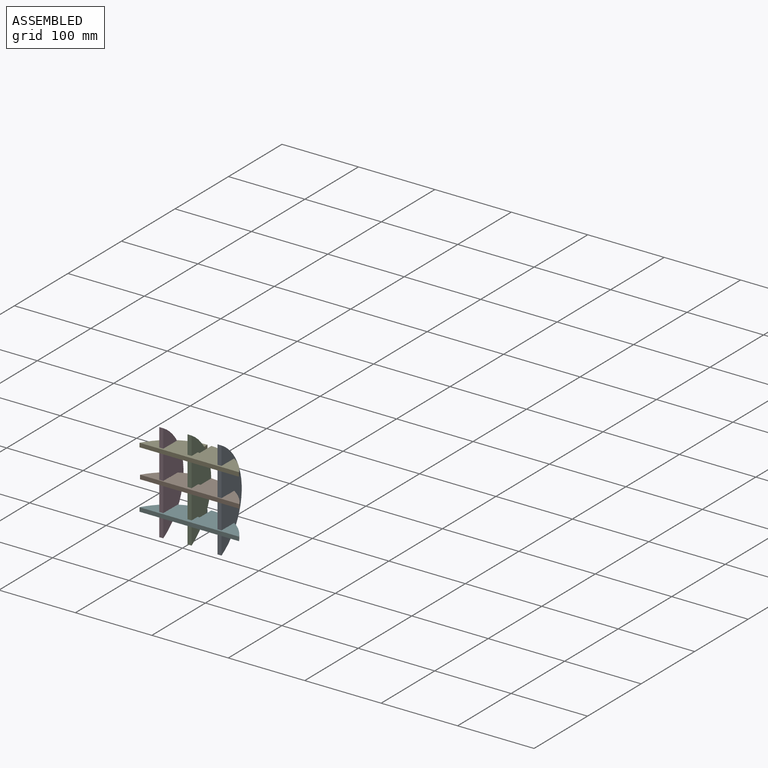
[diagram: assembled view]
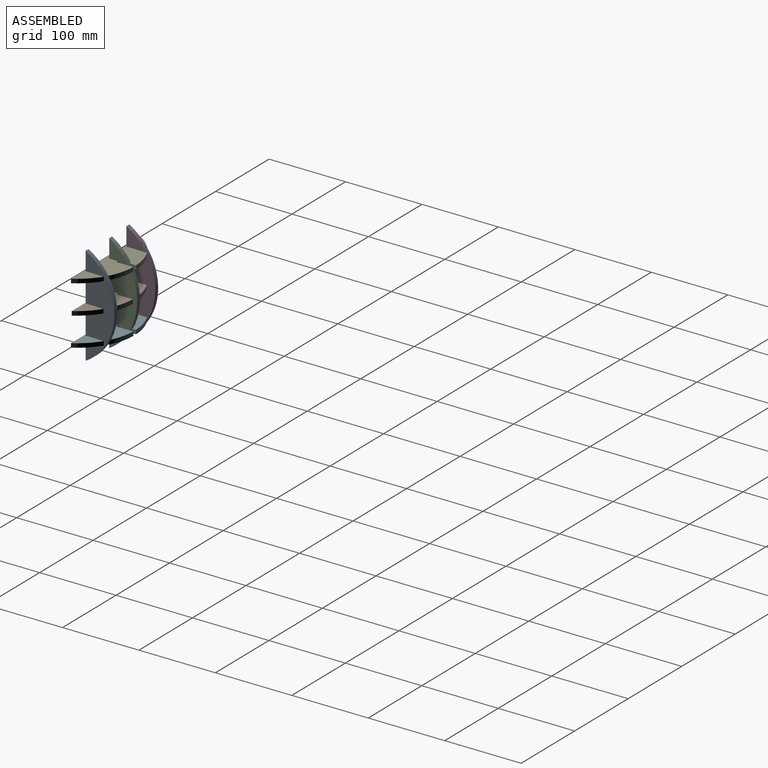
[diagram: assembled view, second angle]
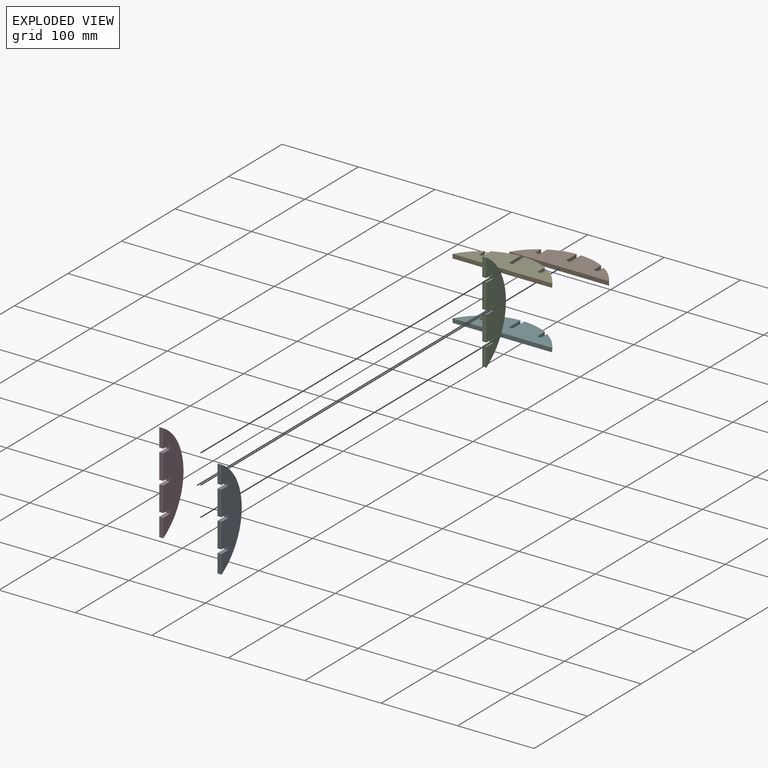
[diagram: exploded view]
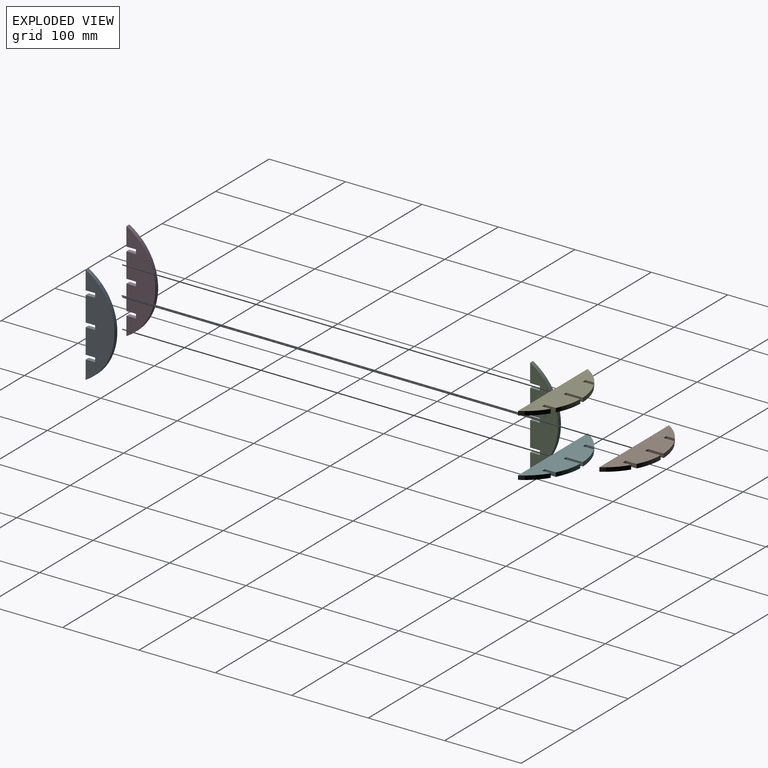
[diagram: exploded view, second angle]
ASSEMBLY  parts=6 mates=5
PART A: 16 faces, bbox 5.3x130.2x37.8 mm
  f0: plane 12.46x5.33mm, normal (0,-1,0), area 66.5mm2, adj f1,f13,f14,f15
  f1: plane 32.5x5.33mm, normal (0,0,-1), area 173.4mm2, adj f0,f2,f14,f15
  f2: plane 12.45x5.33mm, normal (0,1,0), area 66.4mm2, adj f1,f3,f14,f15
  f3: plane 5.61x5.33mm, normal (0,0,-1), area 29.9mm2, adj f2,f4,f14,f15
  f4: plane 12.45x5.33mm, normal (0,-1,0), area 66.4mm2, adj f3,f5,f14,f15
  f5: plane 24.18x5.33mm, normal (0,0,-1), area 129mm2, adj f4,f6,f14,f15
  f6: cylinder r=74.98mm len=130.18mm, axis (-1,0,0), area 840.9mm2, adj f5,f7,f14,f15
  f7: plane 24.18x5.33mm, normal (0,0,-1), area 129mm2, adj f6,f8,f14,f15
  f8: plane 12.45x5.33mm, normal (0,1,0), area 66.4mm2, adj f7,f9,f14,f15
  f9: plane 5.61x5.33mm, normal (0,0,-1), area 29.9mm2, adj f8,f10,f14,f15
  f10: plane 12.45x5.33mm, normal (0,-1,0), area 66.4mm2, adj f9,f11,f14,f15
  f11: plane 32.5x5.33mm, normal (0,0,-1), area 173.4mm2, adj f10,f12,f14,f15
  f12: plane 12.46x5.33mm, normal (0,1,0), area 66.5mm2, adj f11,f13,f14,f15
  f13: plane 5.59x5.33mm, normal (0,0,-1), area 29.8mm2, adj f0,f12,f14,f15
  f14: plane 130.18x37.76mm, normal (1,0,0), area 3278.2mm2, adj f0,f1,f2,f3,f4,f5,f6,f7
  f15: plane 130.18x37.76mm, normal (-1,0,0), area 3278.2mm2, adj f0,f1,f2,f3,f4,f5,f6,f7
PART B: 16 faces, bbox 130.2x5.3x36.5 mm
  f0: plane 14.24x5.33mm, normal (1,0,0), area 75.9mm2, adj f1,f13,f14,f15
  f1: cylinder r=76.2mm len=32.51mm, axis (0,1,0), area 180.9mm2, adj f0,f2,f14,f15
  f2: plane 20.31x5.33mm, normal (-1,0,0), area 108.3mm2, adj f1,f3,f14,f15
  f3: plane 5.59x5.33mm, normal (0,0,1), area 29.8mm2, adj f2,f4,f14,f15
  f4: plane 20.31x5.33mm, normal (1,0,0), area 108.3mm2, adj f3,f5,f14,f15
  f5: cylinder r=76.2mm len=32.51mm, axis (0,1,0), area 180.9mm2, adj f4,f6,f14,f15
  f6: plane 14.24x5.33mm, normal (-1,0,0), area 75.9mm2, adj f5,f7,f14,f15
  f7: plane 5.59x5.33mm, normal (0,0,1), area 29.8mm2, adj f6,f8,f14,f15
  f8: plane 11.01x5.33mm, normal (1,0,0), area 58.7mm2, adj f7,f9,f14,f15
  f9: cylinder r=76.2mm len=24.67mm, axis (0,1,0), area 185.9mm2, adj f8,f10,f14,f15
  f10: plane 130.18x5.33mm, normal (0,0,-1), area 694.4mm2, adj f9,f11,f14,f15
  f11: cylinder r=76.2mm len=24.67mm, axis (0,1,0), area 185.9mm2, adj f10,f12,f14,f15
  f12: plane 11.01x5.33mm, normal (-1,0,0), area 58.7mm2, adj f11,f13,f14,f15
  f13: plane 5.59x5.33mm, normal (0,0,1), area 29.8mm2, adj f0,f12,f14,f15
  f14: plane 130.18x36.53mm, normal (0,-1,0), area 3111.2mm2, adj f0,f1,f2,f3,f4,f5,f6,f7
  f15: plane 130.18x36.53mm, normal (0,1,0), area 3111.2mm2, adj f0,f1,f2,f3,f4,f5,f6,f7
PART C: 16 faces, bbox 5.3x130.2x36.6 mm
  f0: plane 12.7x5.33mm, normal (0,-1,0), area 67.7mm2, adj f1,f13,f14,f15
  f1: plane 32.51x5.33mm, normal (0,0,-1), area 173.4mm2, adj f0,f2,f14,f15
  f2: plane 12.7x5.33mm, normal (0,1,0), area 67.7mm2, adj f1,f3,f14,f15
  f3: plane 5.59x5.33mm, normal (0,0,-1), area 29.8mm2, adj f2,f4,f14,f15
  f4: plane 12.7x5.33mm, normal (0,-1,0), area 67.7mm2, adj f3,f5,f14,f15
  f5: plane 24.19x5.33mm, normal (0,0,-1), area 129mm2, adj f4,f6,f14,f15
  f6: cylinder r=76.2mm len=130.18mm, axis (-1,0,0), area 832.4mm2, adj f5,f7,f14,f15
  f7: plane 24.19x5.33mm, normal (0,0,-1), area 129mm2, adj f6,f8,f14,f15
  f8: plane 12.7x5.33mm, normal (0,1,0), area 67.7mm2, adj f7,f9,f14,f15
  f9: plane 5.59x5.33mm, normal (0,0,-1), area 29.8mm2, adj f8,f10,f14,f15
  f10: plane 12.7x5.33mm, normal (0,-1,0), area 67.7mm2, adj f9,f11,f14,f15
  f11: plane 32.51x5.33mm, normal (0,0,-1), area 173.4mm2, adj f10,f12,f14,f15
  f12: plane 12.7x5.33mm, normal (0,1,0), area 67.7mm2, adj f11,f13,f14,f15
  f13: plane 5.59x5.33mm, normal (0,0,-1), area 29.8mm2, adj f0,f12,f14,f15
  f14: plane 130.18x36.58mm, normal (1,0,0), area 3153.6mm2, adj f0,f1,f2,f3,f4,f5,f6,f7
  f15: plane 130.18x36.58mm, normal (-1,0,0), area 3153.6mm2, adj f0,f1,f2,f3,f4,f5,f6,f7
PART D: same geometry as A
PART E: 16 faces, bbox 130.2x5.3x37.7 mm
  f0: plane 11.26x5.33mm, normal (1,0,0), area 60.1mm2, adj f1,f13,f14,f15
  f1: cylinder r=74.99mm len=25.78mm, axis (0,1,0), area 191.3mm2, adj f0,f2,f14,f15
  f2: plane 130.18x5.33mm, normal (0,0,-1), area 694.4mm2, adj f1,f3,f14,f15
  f3: cylinder r=74.99mm len=25.78mm, axis (0,1,0), area 191.3mm2, adj f2,f4,f14,f15
  f4: plane 11.26x5.33mm, normal (-1,0,0), area 60.1mm2, adj f3,f5,f14,f15
  f5: plane 5.33x5.08mm, normal (0,0,1), area 27.1mm2, adj f4,f6,f14,f15
  f6: plane 14.26x5.33mm, normal (1,0,0), area 76.1mm2, adj f5,f7,f14,f15
  f7: cylinder r=74.99mm len=33.02mm, axis (0,1,0), area 184.1mm2, adj f6,f8,f14,f15
  f8: plane 21.85x5.33mm, normal (-1,0,0), area 116.6mm2, adj f7,f9,f14,f15
  f9: plane 5.33x5.08mm, normal (0,0,1), area 27.1mm2, adj f8,f10,f14,f15
  f10: plane 21.85x5.33mm, normal (1,0,0), area 116.6mm2, adj f9,f11,f14,f15
  f11: cylinder r=74.99mm len=33.02mm, axis (0,1,0), area 184.1mm2, adj f10,f12,f14,f15
  f12: plane 14.26x5.33mm, normal (-1,0,0), area 76.1mm2, adj f11,f13,f14,f15
  f13: plane 5.33x5.08mm, normal (0,0,1), area 27.1mm2, adj f0,f12,f14,f15
  f14: plane 130.18x37.7mm, normal (0,-1,0), area 3245mm2, adj f0,f1,f2,f3,f4,f5,f6,f7
  f15: plane 130.18x37.7mm, normal (0,1,0), area 3245mm2, adj f0,f1,f2,f3,f4,f5,f6,f7
PART F: same geometry as E
PLACE A rot(axis=(0,0.71,0.71),180deg) t=(-223.5,-64.58,440.27)mm
PLACE B rot(axis=(-1,0,0),90deg) t=(-168.21,-137.33,257.13)mm
PLACE C rot(axis=(-1,0,0),90deg) t=(-269.6,-165.55,4.38)mm
PLACE D rot(axis=(-1,0,0),90deg) t=(-305.04,-64.58,79.31)mm
PLACE E rot(axis=(0,0.71,0.71),180deg) t=(-323.07,-54.91,300.56)mm
PLACE F rot(axis=(-1,0,0),90deg) t=(-205.48,-54.91,219.03)mm
MATE fastened F.f5 <-> A.f9  axis (0,1,0) through (-226.17,-23.8,221.69)mm
MATE fastened B.f7 <-> D.f13  axis (0,1,0) through (-302.37,-23.79,259.79)mm
MATE fastened C.f13 <-> B.f3  axis (0,-1,0) through (-264.27,-21.24,259.79)mm
MATE fastened E.f5 <-> D.f9  axis (0,1,0) through (-302.37,-23.8,297.89)mm
MATE fastened E.f13 <-> A.f3  axis (0,1,0) through (-226.17,-23.8,297.89)mm
